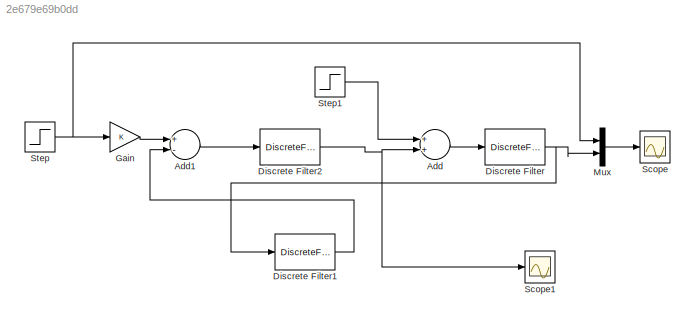
MODEL slx_2e679e69b0dd
KIND model
CONFIG AbsTol = auto
CONFIG EnableMultiTasking = off
CONFIG FixedStep = 0.01
CONFIG MaxStep = auto
CONFIG MinStep = auto
CONFIG RelTol = 1e-3
CONFIG SampleTimeConstraint = Unconstrained
CONFIG Solver = FixedStepAuto
CONFIG SolverName = FixedStepAuto
CONFIG StartTime = 0.0
CONFIG StopTime = 0.2
BLOCK [Sum] Add
  InputSameDT = off
  OutDataTypeStr = Inherit: Inherit via internal rule
  Ports = [2, 1]
  SaturateOnIntegerOverflow = off
BLOCK [Sum] Add1
  InputSameDT = off
  Inputs = +-
  OutDataTypeStr = Inherit: Inherit via internal rule
  Ports = [2, 1]
  SaturateOnIntegerOverflow = off
BLOCK [DiscreteFilter] Discrete Filter
  Denominator = [1 -0.9763]
  InputPortMap = u0
  Numerator = [0 0.4938 ]
  Ports = [1, 1]
BLOCK [DiscreteFilter] Discrete Filter1
  Denominator = [1]
  InputPortMap = u0
  Numerator = [4]
  Ports = [1, 1]
BLOCK [DiscreteFilter] Discrete Filter2
  Denominator = [1]
  InputPortMap = u0
  Ports = [1, 1]
BLOCK [Gain] Gain
  OutDataTypeStr = Inherit: Inherit via internal rule
  ParamDataTypeStr = Inherit: Inherit via internal rule
  SaturateOnIntegerOverflow = off
BLOCK [Mux] Mux
  DisplayOption = bar
  Inputs = 2
  Ports = [2, 1]
BLOCK [Scope] Scope
  Floating = off
  NumInputPorts = 1
  Ports = [1]
  ScopeSpecificationString = Simulink.scopes.TimeScopeBlockCfg('CurrentConfiguration', extmgr.ConfigurationSet(extmgr.Configuration('Core','General UI',true),extmgr.Configuration('Core','Source UI',true),extmgr.Configuration('Sources','WiredSimulink',true),extmgr.Configuration('Visuals','Time Domain',true,'SerializedDisplays',{struct('MinYLimReal','-0.125','MaxYLimReal','1.125','YLabelReal','','MinYLimMag','0.00000','MaxYLimM...<+1360ch>
BLOCK [Scope] Scope1
  Floating = off
  NumInputPorts = 1
  Ports = [1]
  ScopeSpecificationString = Simulink.scopes.TimeScopeBlockCfg('CurrentConfiguration', extmgr.ConfigurationSet(extmgr.Configuration('Core','General UI',true),extmgr.Configuration('Core','Source UI',true),extmgr.Configuration('Sources','WiredSimulink',true,'DataLoggingVariableName','ScopeData1'),extmgr.Configuration('Visuals','Time Domain',true,'SerializedDisplays',{struct('MinYLimReal','0.82847','MaxYLimReal','1.05584','YLabe...<+1421ch>
BLOCK [Step] Step
  Time = 0.1
BLOCK [Step] Step1
  After = 0
  SampleTime = 0
  Time = 0
LINE Add1:1 -> Discrete Filter2:1
LINE Add:1 -> Discrete Filter:1
LINE Discrete Filter1:1 -> Add1:2
NET Discrete Filter2:1 -> Add:2, Scope1:1
NET Discrete Filter:1 -> Discrete Filter1:1, Mux:2
LINE Gain:1 -> Add1:1
LINE Mux:1 -> Scope:1
LINE Step1:1 -> Add:1
NET Step:1 -> Gain:1, Mux:1
note: NET lines group one-source signal fan-out (src -> all destinations, sorted); 1:1 wires keep LINE
